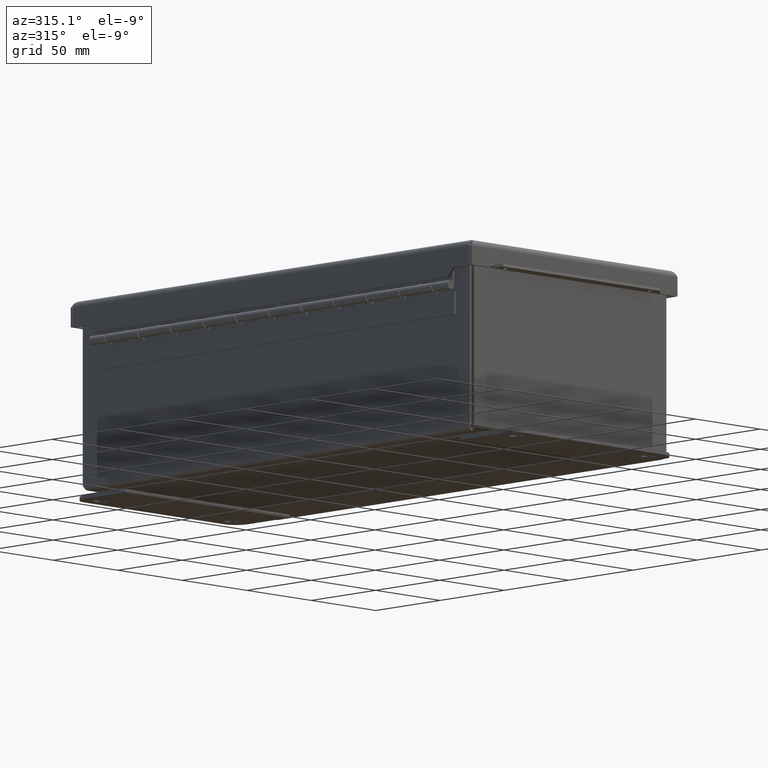
[diagram: clean part render]
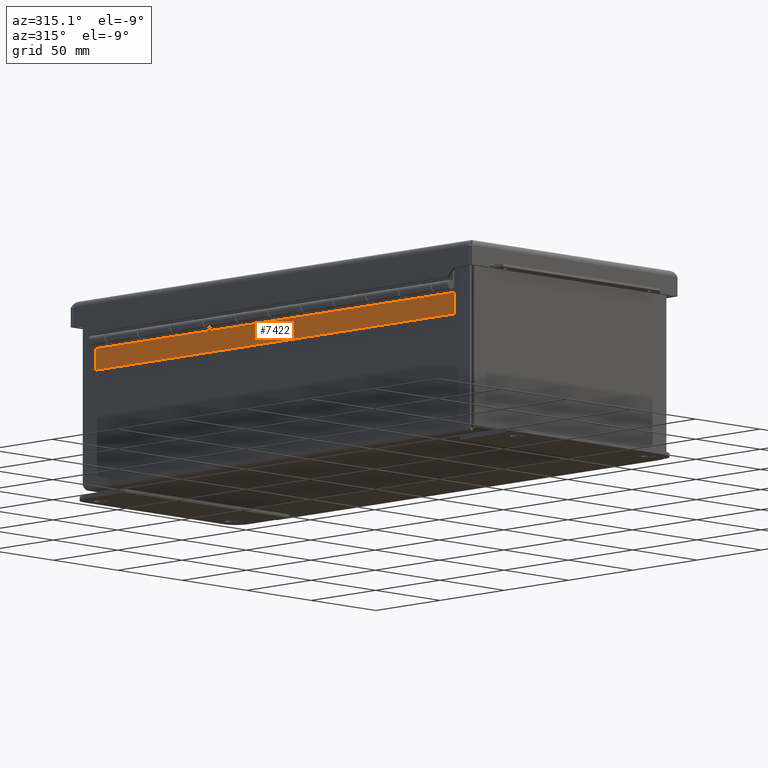
[diagram: same view with one face highlighted and labeled with its STEP entity id]
A machine part, auxiliary view. The second image highlights one B-rep face of the part: STEP entity #7422.
In plain terms, the highlighted planar face has unit normal (-1, 0, -0).
Its self-contained STEP definition (entity closure, byte-faithful):
#753=PLANE('',#8212);
#1276=LINE('',#12172,#2014);
#1311=LINE('',#12234,#2049);
#1327=LINE('',#12277,#2065);
#1328=LINE('',#12278,#2066);
#2014=VECTOR('',#9584,0.393700787401575);
#2049=VECTOR('',#9645,0.393700787401575);
#2065=VECTOR('',#9705,0.393700787401575);
#2066=VECTOR('',#9706,0.393700787401575);
#2695=FACE_OUTER_BOUND('',#3157,.T.);
#3157=EDGE_LOOP('',(#6474,#6475,#6476,#6477));
#3912=VERTEX_POINT('',#12169);
#3913=VERTEX_POINT('',#12171);
#3927=VERTEX_POINT('',#12232);
#3932=VERTEX_POINT('',#12276);
#4749=EDGE_CURVE('',#3913,#3912,#1276,.T.);
#4785=EDGE_CURVE('',#3912,#3927,#1311,.T.);
#4806=EDGE_CURVE('',#3927,#3932,#1327,.T.);
#4807=EDGE_CURVE('',#3913,#3932,#1328,.T.);
#6474=ORIENTED_EDGE('',*,*,#4806,.T.);
#6475=ORIENTED_EDGE('',*,*,#4807,.F.);
#6476=ORIENTED_EDGE('',*,*,#4749,.T.);
#6477=ORIENTED_EDGE('',*,*,#4785,.T.);
#7422=ADVANCED_FACE('',(#2695),#753,.T.);
#8212=AXIS2_PLACEMENT_3D('',#12275,#9703,#9704);
#9584=DIRECTION('',(4.64995403176896E-17,1.,0.));
#9645=DIRECTION('',(0.,0.,1.));
#9703=DIRECTION('center_axis',(1.,-4.64995403176896E-17,0.));
#9704=DIRECTION('ref_axis',(0.,0.,-1.));
#9705=DIRECTION('',(-4.64995403176896E-17,-1.,0.));
#9706=DIRECTION('',(0.,0.,1.));
#12169=CARTESIAN_POINT('',(0.0418,0.47,0.));
#12171=CARTESIAN_POINT('',(0.0418,5.11902362043593E-18,0.));
#12172=CARTESIAN_POINT('',(0.0418,5.11902362043593E-18,0.));
#12232=CARTESIAN_POINT('',(0.0418,0.47,11.));
#12234=CARTESIAN_POINT('',(0.0418,0.47,0.));
#12275=CARTESIAN_POINT('Origin',(0.0418,0.47,0.));
#12276=CARTESIAN_POINT('',(0.0418,5.11902362043593E-18,11.));
#12277=CARTESIAN_POINT('',(0.0418,5.11902362043593E-18,11.));
#12278=CARTESIAN_POINT('',(0.0418,5.11902362043593E-18,0.));